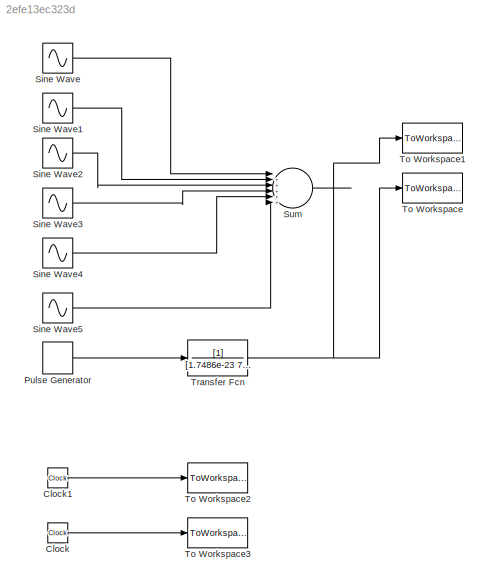
MODEL slx_2efe13ec323d
KIND model
CONFIG AbsTol = auto
CONFIG EnableMultiTasking = off
CONFIG FixedStep = auto
CONFIG MaxStep = auto
CONFIG MinStep = auto
CONFIG RelTol = 1e-3
CONFIG SampleTimeConstraint = Unconstrained
CONFIG Solver = VariableStepAuto
CONFIG SolverName = VariableStepAuto
CONFIG StartTime = 0.0
CONFIG StopTime = Tsim
BLOCK [Clock] Clock
BLOCK [Clock] Clock1
BLOCK [DiscretePulseGenerator] Pulse Generator
  Period = 1/f1
  Ports = [0, 1]
  PulseType = Time based
  PulseWidth = 50
BLOCK [Sin] Sine Wave
  Frequency = 2*pi*f1
  Ports = [0, 1]
  SampleTime = 0
BLOCK [Sin] Sine Wave1
  Frequency = 2*pi*f2
  Ports = [0, 1]
  SampleTime = 0
BLOCK [Sin] Sine Wave2
  Frequency = 2*pi*f3
  Ports = [0, 1]
  SampleTime = 0
BLOCK [Sin] Sine Wave3
  Frequency = 2*pi*f4
  Ports = [0, 1]
  SampleTime = 0
BLOCK [Sin] Sine Wave4
  Frequency = 2*pi*f5
  Ports = [0, 1]
  SampleTime = 0
BLOCK [Sin] Sine Wave5
  Frequency = 2*pi*f6
  Ports = [0, 1]
  SampleTime = 0
BLOCK [Sum] Sum
  IconShape = round
  InputSameDT = off
  Inputs = |++++++
  OutDataTypeStr = Inherit: Inherit via internal rule
  Ports = [6, 1]
  SaturateOnIntegerOverflow = off
BLOCK [ToWorkspace] To Workspace
  FixptAsFi = on
  MaxDataPoints = M
  Ports = [1]
  SampleTime = Te
  Save2DSignal = 3-D array (concatenate along third dimension)
  VariableName = Sin_Ech
BLOCK [ToWorkspace] To Workspace1
  FixptAsFi = on
  MaxDataPoints = 100*M
  Ports = [1]
  SampleTime = Te/100
  Save2DSignal = 3-D array (concatenate along third dimension)
  VariableName = Sin_Cont
BLOCK [ToWorkspace] To Workspace2
  FixptAsFi = on
  MaxDataPoints = 100*M
  Ports = [1]
  SampleTime = Te/100
  Save2DSignal = 3-D array (concatenate along third dimension)
  VariableName = Tps_Cont
BLOCK [ToWorkspace] To Workspace3
  FixptAsFi = on
  MaxDataPoints = M
  Ports = [1]
  SampleTime = Te
  Save2DSignal = 3-D array (concatenate along third dimension)
  VariableName = Tps_Ech
BLOCK [TransferFcn] Transfer Fcn
  Denominator = [1.7486e-23 7.6663e-18 1.162e-11 3.0332e-6 1]
LINE Clock1:1 -> To Workspace2:1
LINE Clock:1 -> To Workspace3:1
LINE Pulse Generator:1 -> Transfer Fcn:1
LINE Sine Wave1:1 -> Sum:2
LINE Sine Wave2:1 -> Sum:3
LINE Sine Wave3:1 -> Sum:4
LINE Sine Wave4:1 -> Sum:5
LINE Sine Wave5:1 -> Sum:6
LINE Sine Wave:1 -> Sum:1
NET Transfer Fcn:1 -> To Workspace1:1, To Workspace:1
note: NET lines group one-source signal fan-out (src -> all destinations, sorted); 1:1 wires keep LINE
